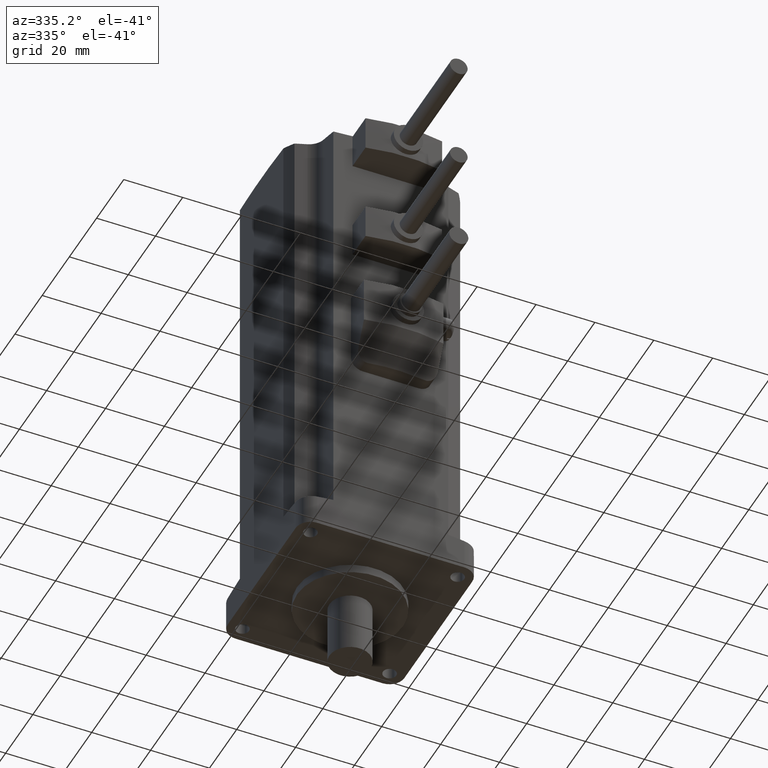
[diagram: clean part render]
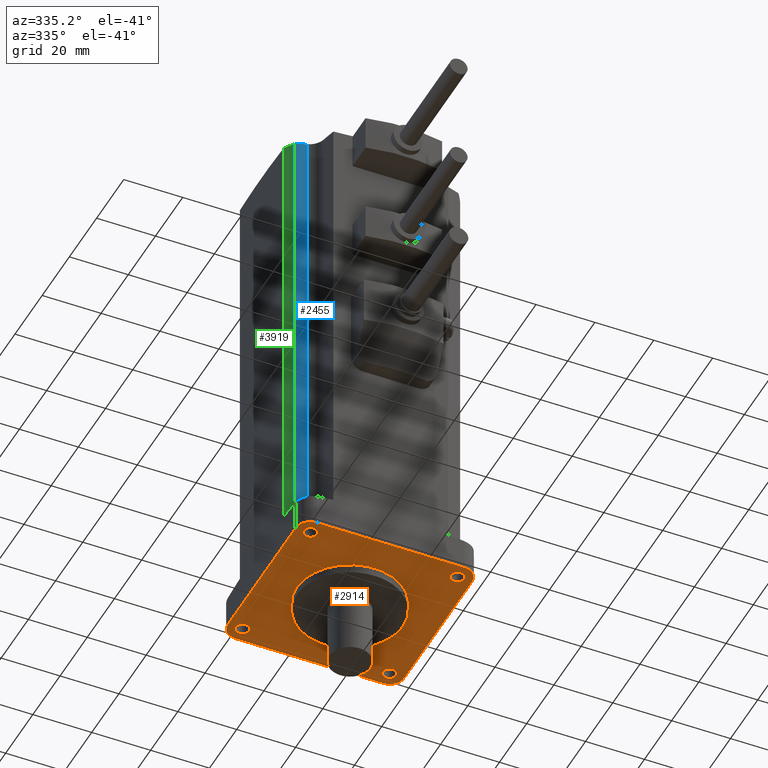
[diagram: same view with three faces highlighted in distinct colors, each labeled with its STEP entity id]
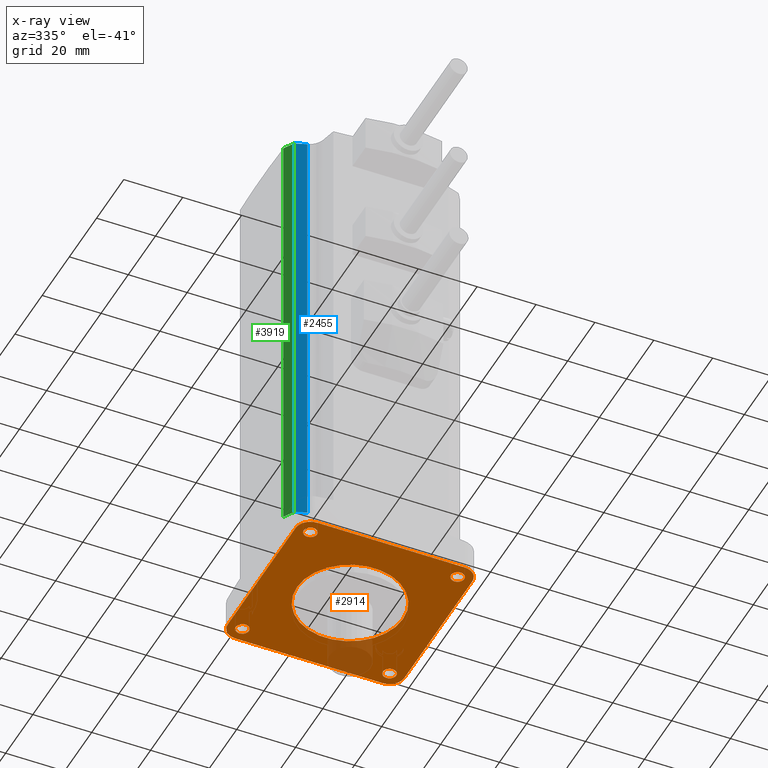
[diagram: x-ray of the same camera — body ghosted, the three highlighted faces saturated]
A machine part, auxiliary view with three faces highlighted in distinct colors.
The next image is the same camera in x-ray (body ghosted, the three faces saturated) — at least one of them is partly hidden behind the body in this view.
Their STEP definitions:

[orange] entity #2914 — the highlighted planar face has unit normal (0, -0, 1).
#41 = ORIENTED_EDGE ( 'NONE', *, *, #4226, .T. ) ;
#53 = ORIENTED_EDGE ( 'NONE', *, *, #3604, .T. ) ;
#65 = CARTESIAN_POINT ( 'NONE',  ( -25.00000000000000355, -24.99999999999999645, 0.0000000000000000000 ) ) ;
#95 = ORIENTED_EDGE ( 'NONE', *, *, #183, .T. ) ;
#109 = AXIS2_PLACEMENT_3D ( 'NONE', #3038, #3405, #2653 ) ;
#113 = ORIENTED_EDGE ( 'NONE', *, *, #1720, .F. ) ;
#121 = VERTEX_POINT ( 'NONE', #610 ) ;
#183 = EDGE_CURVE ( 'NONE', #3160, #1034, #3671, .T. ) ;
#219 = DIRECTION ( 'NONE',  ( 1.000000000000000000, 0.0000000000000000000, 0.0000000000000000000 ) ) ;
#238 = AXIS2_PLACEMENT_3D ( 'NONE', #1326, #3718, #4899 ) ;
#257 = CARTESIAN_POINT ( 'NONE',  ( 0.0000000000000000000, 0.0000000000000000000, 0.0000000000000000000 ) ) ;
#275 = DIRECTION ( 'NONE',  ( 1.000000000000000000, 0.0000000000000000000, 0.0000000000000000000 ) ) ;
#326 = EDGE_CURVE ( 'NONE', #897, #2778, #2933, .T. ) ;
#368 = EDGE_CURVE ( 'NONE', #921, #2762, #3073, .T. ) ;
#410 = EDGE_LOOP ( 'NONE', ( #4369, #3996 ) ) ;
#449 = VERTEX_POINT ( 'NONE', #1400 ) ;
#506 = ORIENTED_EDGE ( 'NONE', *, *, #1436, .T. ) ;
#516 = CARTESIAN_POINT ( 'NONE',  ( 27.24999999999999289, 25.00000000000000355, 0.0000000000000000000 ) ) ;
#596 = AXIS2_PLACEMENT_3D ( 'NONE', #4973, #1399, #219 ) ;
#610 = CARTESIAN_POINT ( 'NONE',  ( 30.00000000000000000, -25.00000000000000000, 0.0000000000000000000 ) ) ;
#628 = EDGE_LOOP ( 'NONE', ( #3332, #506 ) ) ;
#712 = AXIS2_PLACEMENT_3D ( 'NONE', #4614, #1067, #3433 ) ;
#721 = CIRCLE ( 'NONE', #1953, 18.00000000000000000 ) ;
#738 = FACE_BOUND ( 'NONE', #410, .T. ) ;
#741 = EDGE_LOOP ( 'NONE', ( #1136, #2361, #1831, #1349, #2477, #41, #5123, #53 ) ) ;
#847 = AXIS2_PLACEMENT_3D ( 'NONE', #2301, #5122, #4732 ) ;
#897 = VERTEX_POINT ( 'NONE', #4358 ) ;
#921 = VERTEX_POINT ( 'NONE', #4072 ) ;
#926 = VERTEX_POINT ( 'NONE', #4464 ) ;
#971 = DIRECTION ( 'NONE',  ( -0.0000000000000000000, 0.0000000000000000000, -1.000000000000000000 ) ) ;
#1016 = AXIS2_PLACEMENT_3D ( 'NONE', #65, #3276, #2493 ) ;
#1034 = VERTEX_POINT ( 'NONE', #1590 ) ;
#1067 = DIRECTION ( 'NONE',  ( -0.0000000000000000000, -0.0000000000000000000, -1.000000000000000000 ) ) ;
#1136 = ORIENTED_EDGE ( 'NONE', *, *, #3083, .F. ) ;
#1187 = CIRCLE ( 'NONE', #3101, 5.000000000000000888 ) ;
#1221 = CIRCLE ( 'NONE', #3341, 2.249999999999998668 ) ;
#1245 = DIRECTION ( 'NONE',  ( 0.0000000000000000000, 0.0000000000000000000, 1.000000000000000000 ) ) ;
#1249 = CARTESIAN_POINT ( 'NONE',  ( 25.00000000000000355, -24.99999999999998579, 0.0000000000000000000 ) ) ;
#1301 = AXIS2_PLACEMENT_3D ( 'NONE', #1249, #4353, #3565 ) ;
#1312 = EDGE_LOOP ( 'NONE', ( #95, #1745 ) ) ;
#1326 = CARTESIAN_POINT ( 'NONE',  ( 25.00000000000000355, -24.99999999999998579, 0.0000000000000000000 ) ) ;
#1349 = ORIENTED_EDGE ( 'NONE', *, *, #4387, .T. ) ;
#1399 = DIRECTION ( 'NONE',  ( -0.0000000000000000000, 0.0000000000000000000, -1.000000000000000000 ) ) ;
#1400 = CARTESIAN_POINT ( 'NONE',  ( -25.00000000000000000, 30.00000000000000000, 0.0000000000000000000 ) ) ;
#1404 = FACE_BOUND ( 'NONE', #628, .T. ) ;
#1431 = ORIENTED_EDGE ( 'NONE', *, *, #5069, .T. ) ;
#1433 = CARTESIAN_POINT ( 'NONE',  ( 30.00000000000000000, 30.00000000000000000, 0.0000000000000000000 ) ) ;
#1436 = EDGE_CURVE ( 'NONE', #2762, #921, #3545, .T. ) ;
#1535 = CIRCLE ( 'NONE', #712, 18.00000000000000000 ) ;
#1565 = CARTESIAN_POINT ( 'NONE',  ( 27.25000000000000355, -24.99999999999998579, 0.0000000000000000000 ) ) ;
#1590 = CARTESIAN_POINT ( 'NONE',  ( -22.75000000000000711, 25.00000000000000355, 0.0000000000000000000 ) ) ;
#1715 = DIRECTION ( 'NONE',  ( 1.000000000000000000, -0.0000000000000000000, -0.0000000000000000000 ) ) ;
#1720 = EDGE_CURVE ( 'NONE', #3193, #3282, #721, .T. ) ;
#1745 = ORIENTED_EDGE ( 'NONE', *, *, #2797, .T. ) ;
#1811 = CARTESIAN_POINT ( 'NONE',  ( 25.00000000000000000, 30.00000000000000000, 0.0000000000000000000 ) ) ;
#1831 = ORIENTED_EDGE ( 'NONE', *, *, #2956, .F. ) ;
#1854 = DIRECTION ( 'NONE',  ( -0.0000000000000000000, 0.0000000000000000000, -1.000000000000000000 ) ) ;
#1881 = CIRCLE ( 'NONE', #4725, 2.249999999999998668 ) ;
#1886 = VECTOR ( 'NONE', #4726, 1000.000000000000000 ) ;
#1944 = DIRECTION ( 'NONE',  ( -0.0000000000000000000, -0.0000000000000000000, -1.000000000000000000 ) ) ;
#1953 = AXIS2_PLACEMENT_3D ( 'NONE', #4020, #1944, #4862 ) ;
#1955 = VERTEX_POINT ( 'NONE', #4893 ) ;
#2046 = CARTESIAN_POINT ( 'NONE',  ( -18.00000000000000000, 0.0000000000000000000, 0.0000000000000000000 ) ) ;
#2070 = CARTESIAN_POINT ( 'NONE',  ( -30.00000000000000000, 25.00000000000000000, 0.0000000000000000000 ) ) ;
#2125 = VECTOR ( 'NONE', #3390, 1000.000000000000000 ) ;
#2211 = FACE_BOUND ( 'NONE', #4729, .T. ) ;
#2225 = CARTESIAN_POINT ( 'NONE',  ( 18.00000000000000000, 2.204364238465235428E-15, 0.0000000000000000000 ) ) ;
#2227 = CARTESIAN_POINT ( 'NONE',  ( -25.00000000000000355, -24.99999999999999645, 0.0000000000000000000 ) ) ;
#2240 = DIRECTION ( 'NONE',  ( 1.000000000000000000, 0.0000000000000000000, -0.0000000000000000000 ) ) ;
#2301 = CARTESIAN_POINT ( 'NONE',  ( -25.00000000000000355, 25.00000000000000355, 0.0000000000000000000 ) ) ;
#2361 = ORIENTED_EDGE ( 'NONE', *, *, #4210, .T. ) ;
#2363 = CIRCLE ( 'NONE', #109, 2.249999999999998668 ) ;
#2412 = CARTESIAN_POINT ( 'NONE',  ( 30.00000000000000000, -30.00000000000000000, 0.0000000000000000000 ) ) ;
#2477 = ORIENTED_EDGE ( 'NONE', *, *, #3070, .F. ) ;
#2493 = DIRECTION ( 'NONE',  ( 1.000000000000000000, 0.0000000000000000000, 0.0000000000000000000 ) ) ;
#2553 = CARTESIAN_POINT ( 'NONE',  ( 25.00000000000000000, -30.00000000000000000, 0.0000000000000000000 ) ) ;
#2637 = DIRECTION ( 'NONE',  ( 0.0000000000000000000, -0.0000000000000000000, 1.000000000000000000 ) ) ;
#2653 = DIRECTION ( 'NONE',  ( 1.000000000000000000, 0.0000000000000000000, 0.0000000000000000000 ) ) ;
#2689 = PLANE ( 'NONE',  #3712 ) ;
#2736 = EDGE_LOOP ( 'NONE', ( #4161, #1431 ) ) ;
#2762 = VERTEX_POINT ( 'NONE', #1565 ) ;
#2763 = AXIS2_PLACEMENT_3D ( 'NONE', #4199, #971, #3418 ) ;
#2778 = VERTEX_POINT ( 'NONE', #2553 ) ;
#2781 = LINE ( 'NONE', #3587, #1886 ) ;
#2797 = EDGE_CURVE ( 'NONE', #1034, #3160, #1881, .T. ) ;
#2832 = CIRCLE ( 'NONE', #596, 5.000000000000000888 ) ;
#2914 = ADVANCED_FACE ( 'NONE', ( #2211, #3102, #4595, #1404, #738, #3491 ), #2689, .F. ) ;
#2925 = AXIS2_PLACEMENT_3D ( 'NONE', #3827, #1854, #4820 ) ;
#2933 = LINE ( 'NONE', #4947, #5077 ) ;
#2939 = DIRECTION ( 'NONE',  ( -0.0000000000000000000, 0.0000000000000000000, -1.000000000000000000 ) ) ;
#2956 = EDGE_CURVE ( 'NONE', #5032, #449, #3853, .T. ) ;
#2990 = VERTEX_POINT ( 'NONE', #4980 ) ;
#3038 = CARTESIAN_POINT ( 'NONE',  ( 24.99999999999999289, 25.00000000000000355, 0.0000000000000000000 ) ) ;
#3070 = EDGE_CURVE ( 'NONE', #121, #4036, #3538, .T. ) ;
#3073 = CIRCLE ( 'NONE', #238, 2.249999999999998668 ) ;
#3083 = EDGE_CURVE ( 'NONE', #3354, #4315, #2781, .T. ) ;
#3101 = AXIS2_PLACEMENT_3D ( 'NONE', #3337, #2939, #4541 ) ;
#3102 = FACE_BOUND ( 'NONE', #1312, .T. ) ;
#3122 = EDGE_CURVE ( 'NONE', #1955, #3436, #1221, .T. ) ;
#3124 = DIRECTION ( 'NONE',  ( 1.000000000000000000, 0.0000000000000000000, 0.0000000000000000000 ) ) ;
#3160 = VERTEX_POINT ( 'NONE', #3303 ) ;
#3193 = VERTEX_POINT ( 'NONE', #2225 ) ;
#3215 = VECTOR ( 'NONE', #4425, 1000.000000000000000 ) ;
#3276 = DIRECTION ( 'NONE',  ( 0.0000000000000000000, 0.0000000000000000000, 1.000000000000000000 ) ) ;
#3282 = VERTEX_POINT ( 'NONE', #2046 ) ;
#3303 = CARTESIAN_POINT ( 'NONE',  ( -27.25000000000000355, 25.00000000000000355, 0.0000000000000000000 ) ) ;
#3332 = ORIENTED_EDGE ( 'NONE', *, *, #368, .T. ) ;
#3336 = DIRECTION ( 'NONE',  ( 1.000000000000000000, 0.0000000000000000000, 0.0000000000000000000 ) ) ;
#3337 = CARTESIAN_POINT ( 'NONE',  ( -25.00000000000000000, 25.00000000000000000, 0.0000000000000000000 ) ) ;
#3341 = AXIS2_PLACEMENT_3D ( 'NONE', #4818, #1245, #3124 ) ;
#3354 = VERTEX_POINT ( 'NONE', #2070 ) ;
#3390 = DIRECTION ( 'NONE',  ( -1.000000000000000000, 0.0000000000000000000, 0.0000000000000000000 ) ) ;
#3405 = DIRECTION ( 'NONE',  ( 0.0000000000000000000, 0.0000000000000000000, 1.000000000000000000 ) ) ;
#3417 = EDGE_CURVE ( 'NONE', #2990, #926, #4339, .T. ) ;
#3418 = DIRECTION ( 'NONE',  ( 1.000000000000000000, 0.0000000000000000000, 0.0000000000000000000 ) ) ;
#3433 = DIRECTION ( 'NONE',  ( -1.000000000000000000, 0.0000000000000000000, 0.0000000000000000000 ) ) ;
#3436 = VERTEX_POINT ( 'NONE', #516 ) ;
#3491 = FACE_OUTER_BOUND ( 'NONE', #741, .T. ) ;
#3538 = LINE ( 'NONE', #2412, #3215 ) ;
#3545 = CIRCLE ( 'NONE', #1301, 2.249999999999998668 ) ;
#3565 = DIRECTION ( 'NONE',  ( 1.000000000000000000, 0.0000000000000000000, 0.0000000000000000000 ) ) ;
#3587 = CARTESIAN_POINT ( 'NONE',  ( -30.00000000000000000, -30.00000000000000000, 0.0000000000000000000 ) ) ;
#3604 = EDGE_CURVE ( 'NONE', #897, #4315, #2832, .T. ) ;
#3671 = CIRCLE ( 'NONE', #847, 2.249999999999998668 ) ;
#3712 = AXIS2_PLACEMENT_3D ( 'NONE', #257, #2637, #2240 ) ;
#3718 = DIRECTION ( 'NONE',  ( 0.0000000000000000000, 0.0000000000000000000, 1.000000000000000000 ) ) ;
#3827 = CARTESIAN_POINT ( 'NONE',  ( 25.00000000000000000, 25.00000000000000000, 0.0000000000000000000 ) ) ;
#3853 = LINE ( 'NONE', #1433, #2125 ) ;
#3923 = CIRCLE ( 'NONE', #2763, 5.000000000000000888 ) ;
#3944 = AXIS2_PLACEMENT_3D ( 'NONE', #2227, #4668, #275 ) ;
#3996 = ORIENTED_EDGE ( 'NONE', *, *, #5099, .T. ) ;
#4020 = CARTESIAN_POINT ( 'NONE',  ( 0.0000000000000000000, 0.0000000000000000000, 0.0000000000000000000 ) ) ;
#4036 = VERTEX_POINT ( 'NONE', #4778 ) ;
#4072 = CARTESIAN_POINT ( 'NONE',  ( 22.75000000000000711, -24.99999999999998579, 0.0000000000000000000 ) ) ;
#4161 = ORIENTED_EDGE ( 'NONE', *, *, #3417, .T. ) ;
#4169 = CARTESIAN_POINT ( 'NONE',  ( -25.00000000000000355, 25.00000000000000355, 0.0000000000000000000 ) ) ;
#4199 = CARTESIAN_POINT ( 'NONE',  ( 25.00000000000000000, -25.00000000000000000, 0.0000000000000000000 ) ) ;
#4210 = EDGE_CURVE ( 'NONE', #3354, #449, #1187, .T. ) ;
#4226 = EDGE_CURVE ( 'NONE', #121, #2778, #3923, .T. ) ;
#4253 = ORIENTED_EDGE ( 'NONE', *, *, #4970, .F. ) ;
#4304 = CARTESIAN_POINT ( 'NONE',  ( -30.00000000000000000, -25.00000000000000000, 0.0000000000000000000 ) ) ;
#4315 = VERTEX_POINT ( 'NONE', #4304 ) ;
#4339 = CIRCLE ( 'NONE', #1016, 2.250000000000001776 ) ;
#4353 = DIRECTION ( 'NONE',  ( 0.0000000000000000000, 0.0000000000000000000, 1.000000000000000000 ) ) ;
#4358 = CARTESIAN_POINT ( 'NONE',  ( -25.00000000000000000, -30.00000000000000000, 0.0000000000000000000 ) ) ;
#4369 = ORIENTED_EDGE ( 'NONE', *, *, #3122, .T. ) ;
#4387 = EDGE_CURVE ( 'NONE', #5032, #4036, #4607, .T. ) ;
#4425 = DIRECTION ( 'NONE',  ( 0.0000000000000000000, 1.000000000000000000, 0.0000000000000000000 ) ) ;
#4464 = CARTESIAN_POINT ( 'NONE',  ( -22.75000000000000355, -24.99999999999999645, 0.0000000000000000000 ) ) ;
#4539 = DIRECTION ( 'NONE',  ( 0.0000000000000000000, 0.0000000000000000000, 1.000000000000000000 ) ) ;
#4541 = DIRECTION ( 'NONE',  ( 1.000000000000000000, 0.0000000000000000000, 0.0000000000000000000 ) ) ;
#4595 = FACE_BOUND ( 'NONE', #2736, .T. ) ;
#4607 = CIRCLE ( 'NONE', #2925, 5.000000000000000888 ) ;
#4614 = CARTESIAN_POINT ( 'NONE',  ( 0.0000000000000000000, 0.0000000000000000000, 0.0000000000000000000 ) ) ;
#4668 = DIRECTION ( 'NONE',  ( 0.0000000000000000000, 0.0000000000000000000, 1.000000000000000000 ) ) ;
#4725 = AXIS2_PLACEMENT_3D ( 'NONE', #4169, #4539, #3336 ) ;
#4726 = DIRECTION ( 'NONE',  ( -0.0000000000000000000, -1.000000000000000000, -0.0000000000000000000 ) ) ;
#4729 = EDGE_LOOP ( 'NONE', ( #4253, #113 ) ) ;
#4732 = DIRECTION ( 'NONE',  ( 1.000000000000000000, 0.0000000000000000000, 0.0000000000000000000 ) ) ;
#4778 = CARTESIAN_POINT ( 'NONE',  ( 30.00000000000000000, 25.00000000000000000, 0.0000000000000000000 ) ) ;
#4818 = CARTESIAN_POINT ( 'NONE',  ( 24.99999999999999289, 25.00000000000000355, 0.0000000000000000000 ) ) ;
#4820 = DIRECTION ( 'NONE',  ( 1.000000000000000000, 0.0000000000000000000, 0.0000000000000000000 ) ) ;
#4862 = DIRECTION ( 'NONE',  ( -1.000000000000000000, 0.0000000000000000000, 0.0000000000000000000 ) ) ;
#4867 = CIRCLE ( 'NONE', #3944, 2.250000000000001776 ) ;
#4893 = CARTESIAN_POINT ( 'NONE',  ( 22.74999999999999645, 25.00000000000000355, 0.0000000000000000000 ) ) ;
#4899 = DIRECTION ( 'NONE',  ( 1.000000000000000000, 0.0000000000000000000, 0.0000000000000000000 ) ) ;
#4947 = CARTESIAN_POINT ( 'NONE',  ( 30.00000000000000000, -30.00000000000000000, 0.0000000000000000000 ) ) ;
#4970 = EDGE_CURVE ( 'NONE', #3282, #3193, #1535, .T. ) ;
#4973 = CARTESIAN_POINT ( 'NONE',  ( -25.00000000000000000, -25.00000000000000000, 0.0000000000000000000 ) ) ;
#4980 = CARTESIAN_POINT ( 'NONE',  ( -27.25000000000000711, -24.99999999999999645, 0.0000000000000000000 ) ) ;
#5032 = VERTEX_POINT ( 'NONE', #1811 ) ;
#5069 = EDGE_CURVE ( 'NONE', #926, #2990, #4867, .T. ) ;
#5077 = VECTOR ( 'NONE', #1715, 1000.000000000000000 ) ;
#5099 = EDGE_CURVE ( 'NONE', #3436, #1955, #2363, .T. ) ;
#5122 = DIRECTION ( 'NONE',  ( 0.0000000000000000000, 0.0000000000000000000, 1.000000000000000000 ) ) ;
#5123 = ORIENTED_EDGE ( 'NONE', *, *, #326, .F. ) ;

[blue] entity #2455 — the highlighted planar face has unit normal (-0.2292, -0.9734, 0).
#22 = LINE ( 'NONE', #399, #147 ) ;
#147 = VECTOR ( 'NONE', #3183, 1000.000000000000000 ) ;
#171 = CARTESIAN_POINT ( 'NONE',  ( -27.85228895441090913, -19.50000000000000000, -0.002000000000000265454 ) ) ;
#215 = DIRECTION ( 'NONE',  ( -0.2291618541185124480, -0.9733883318681018082, 0.0000000000000000000 ) ) ;
#399 = CARTESIAN_POINT ( 'NONE',  ( -23.92293928564299677, -20.42507484021992070, -0.002000000000000265454 ) ) ;
#402 = ORIENTED_EDGE ( 'NONE', *, *, #4959, .F. ) ;
#517 = CARTESIAN_POINT ( 'NONE',  ( -5.812405042916286568, -24.68878282835145654, -34.93134832984431881 ) ) ;
#584 = CARTESIAN_POINT ( 'NONE',  ( -27.85228895441090557, -19.49999999999999289, 162.1574641380339017 ) ) ;
#788 = VERTEX_POINT ( 'NONE', #584 ) ;
#923 = EDGE_CURVE ( 'NONE', #2587, #3767, #22, .T. ) ;
#1040 = DIRECTION ( 'NONE',  ( 0.9733883318681015862, -0.2291618541185123925, 0.0000000000000000000 ) ) ;
#1279 = DIRECTION ( 'NONE',  ( 0.0000000000000000000, 0.0000000000000000000, 1.000000000000000000 ) ) ;
#1325 = DIRECTION ( 'NONE',  ( -0.9733883318681015862, 0.2291618541185124480, 0.0000000000000000000 ) ) ;
#1369 = AXIS2_PLACEMENT_3D ( 'NONE', #3841, #215, #1040 ) ;
#1389 = CARTESIAN_POINT ( 'NONE',  ( -23.92293928564299677, -20.42507484021992070, -0.002000000000000265454 ) ) ;
#1727 = FACE_OUTER_BOUND ( 'NONE', #2857, .T. ) ;
#2122 = AXIS2_PLACEMENT_3D ( 'NONE', #1389, #2891, #4909 ) ;
#2162 = ORIENTED_EDGE ( 'NONE', *, *, #3294, .F. ) ;
#2300 = VECTOR ( 'NONE', #1279, 1000.000000000000000 ) ;
#2455 = ADVANCED_FACE ( 'NONE', ( #1727 ), #3780, .T. ) ;
#2587 = VERTEX_POINT ( 'NONE', #2695 ) ;
#2606 = ORIENTED_EDGE ( 'NONE', *, *, #2833, .F. ) ;
#2695 = CARTESIAN_POINT ( 'NONE',  ( -23.92293928564299677, -20.42507484021991715, 12.06257987064141091 ) ) ;
#2833 = EDGE_CURVE ( 'NONE', #5066, #788, #2938, .T. ) ;
#2857 = EDGE_LOOP ( 'NONE', ( #402, #3738, #2162, #2606 ) ) ;
#2891 = DIRECTION ( 'NONE',  ( -0.2291618541185124203, -0.9733883318681016972, 0.0000000000000000000 ) ) ;
#2898 = CARTESIAN_POINT ( 'NONE',  ( -23.92293928564299677, -20.42507484021992070, 162.5794343978472227 ) ) ;
#2938 = LINE ( 'NONE', #171, #2300 ) ;
#3183 = DIRECTION ( 'NONE',  ( 0.0000000000000000000, 0.0000000000000000000, 1.000000000000000000 ) ) ;
#3253 = AXIS2_PLACEMENT_3D ( 'NONE', #517, #4898, #1325 ) ;
#3294 = EDGE_CURVE ( 'NONE', #788, #3767, #4924, .T. ) ;
#3738 = ORIENTED_EDGE ( 'NONE', *, *, #923, .T. ) ;
#3767 = VERTEX_POINT ( 'NONE', #2898 ) ;
#3780 = PLANE ( 'NONE',  #2122 ) ;
#3841 = CARTESIAN_POINT ( 'NONE',  ( -5.812405042718127746, -24.68878282839811078, -185.4482028544169623 ) ) ;
#4027 = CIRCLE ( 'NONE', #1369, 198.3851807697284642 ) ;
#4691 = CARTESIAN_POINT ( 'NONE',  ( -27.85228895441091268, -19.50000000000000711, 11.64060961088667057 ) ) ;
#4898 = DIRECTION ( 'NONE',  ( 0.2291618541185124758, 0.9733883318681018082, -0.0000000000000000000 ) ) ;
#4909 = DIRECTION ( 'NONE',  ( 0.9733883318681016972, -0.2291618541185124203, 0.0000000000000000000 ) ) ;
#4924 = CIRCLE ( 'NONE', #3253, 198.3851807723309548 ) ;
#4959 = EDGE_CURVE ( 'NONE', #2587, #5066, #4027, .T. ) ;
#5066 = VERTEX_POINT ( 'NONE', #4691 ) ;

[green] entity #3919 — the highlighted cylindrical surface (partial cylindrical patch) has radius 34 mm, axis along (0, 0, 1).
#86 = ORIENTED_EDGE ( 'NONE', *, *, #2419, .F. ) ;
#171 = CARTESIAN_POINT ( 'NONE',  ( -27.85228895441090913, -19.50000000000000000, -0.002000000000000265454 ) ) ;
#383 = VECTOR ( 'NONE', #898, 1000.000000000000000 ) ;
#411 = CARTESIAN_POINT ( 'NONE',  ( -30.00000000000000355, -16.00000000000000000, 162.1574641380377955 ) ) ;
#584 = CARTESIAN_POINT ( 'NONE',  ( -27.85228895441090557, -19.49999999999999289, 162.1574641380339017 ) ) ;
#788 = VERTEX_POINT ( 'NONE', #584 ) ;
#898 = DIRECTION ( 'NONE',  ( 0.0000000000000000000, 0.0000000000000000000, 1.000000000000000000 ) ) ;
#1226 = DIRECTION ( 'NONE',  ( 0.0000000000000000000, 0.0000000000000000000, -1.000000000000000000 ) ) ;
#1279 = DIRECTION ( 'NONE',  ( 0.0000000000000000000, 0.0000000000000000000, 1.000000000000000000 ) ) ;
#1311 = LINE ( 'NONE', #2531, #383 ) ;
#1378 = EDGE_CURVE ( 'NONE', #5066, #3654, #3710, .T. ) ;
#1891 = CARTESIAN_POINT ( 'NONE',  ( -29.99999999999999289, -16.00000000000000000, 11.64060961082016910 ) ) ;
#1908 = FACE_OUTER_BOUND ( 'NONE', #5061, .T. ) ;
#2224 = DIRECTION ( 'NONE',  ( 0.0000000000000000000, 0.0000000000000000000, 1.000000000000000000 ) ) ;
#2271 = ORIENTED_EDGE ( 'NONE', *, *, #1378, .F. ) ;
#2300 = VECTOR ( 'NONE', #1279, 1000.000000000000000 ) ;
#2303 = EDGE_CURVE ( 'NONE', #3466, #788, #3709, .T. ) ;
#2393 = DIRECTION ( 'NONE',  ( -1.000000000000000000, 0.0000000000000000000, 0.0000000000000000000 ) ) ;
#2419 = EDGE_CURVE ( 'NONE', #3654, #3466, #1311, .T. ) ;
#2531 = CARTESIAN_POINT ( 'NONE',  ( -30.00000000000000355, -16.00000000000000000, -0.002000000000000265454 ) ) ;
#2833 = EDGE_CURVE ( 'NONE', #5066, #788, #2938, .T. ) ;
#2938 = LINE ( 'NONE', #171, #2300 ) ;
#3126 = AXIS2_PLACEMENT_3D ( 'NONE', #3988, #3653, #3236 ) ;
#3212 = AXIS2_PLACEMENT_3D ( 'NONE', #4798, #1226, #2393 ) ;
#3236 = DIRECTION ( 'NONE',  ( -1.000000000000000000, 0.0000000000000000000, 0.0000000000000000000 ) ) ;
#3466 = VERTEX_POINT ( 'NONE', #411 ) ;
#3501 = DIRECTION ( 'NONE',  ( 1.000000000000000000, 0.0000000000000000000, 0.0000000000000000000 ) ) ;
#3653 = DIRECTION ( 'NONE',  ( 0.0000000000000000000, 0.0000000000000000000, 1.000000000000000000 ) ) ;
#3654 = VERTEX_POINT ( 'NONE', #1891 ) ;
#3709 = CIRCLE ( 'NONE', #3126, 34.00000000000000000 ) ;
#3710 = CIRCLE ( 'NONE', #3212, 34.00000000000000000 ) ;
#3919 = ADVANCED_FACE ( 'NONE', ( #1908 ), #4735, .T. ) ;
#3988 = CARTESIAN_POINT ( 'NONE',  ( 0.0000000000000000000, 0.0000000000000000000, 162.1574641380377955 ) ) ;
#4664 = CARTESIAN_POINT ( 'NONE',  ( 0.0000000000000000000, 0.0000000000000000000, -0.002000000000000265454 ) ) ;
#4691 = CARTESIAN_POINT ( 'NONE',  ( -27.85228895441091268, -19.50000000000000711, 11.64060961088667057 ) ) ;
#4705 = ORIENTED_EDGE ( 'NONE', *, *, #2303, .F. ) ;
#4735 = CYLINDRICAL_SURFACE ( 'NONE', #4762, 34.00000000000000000 ) ;
#4762 = AXIS2_PLACEMENT_3D ( 'NONE', #4664, #2224, #3501 ) ;
#4798 = CARTESIAN_POINT ( 'NONE',  ( 0.0000000000000000000, 0.0000000000000000000, 11.64060961088667057 ) ) ;
#5061 = EDGE_LOOP ( 'NONE', ( #2271, #5127, #4705, #86 ) ) ;
#5066 = VERTEX_POINT ( 'NONE', #4691 ) ;
#5127 = ORIENTED_EDGE ( 'NONE', *, *, #2833, .T. ) ;